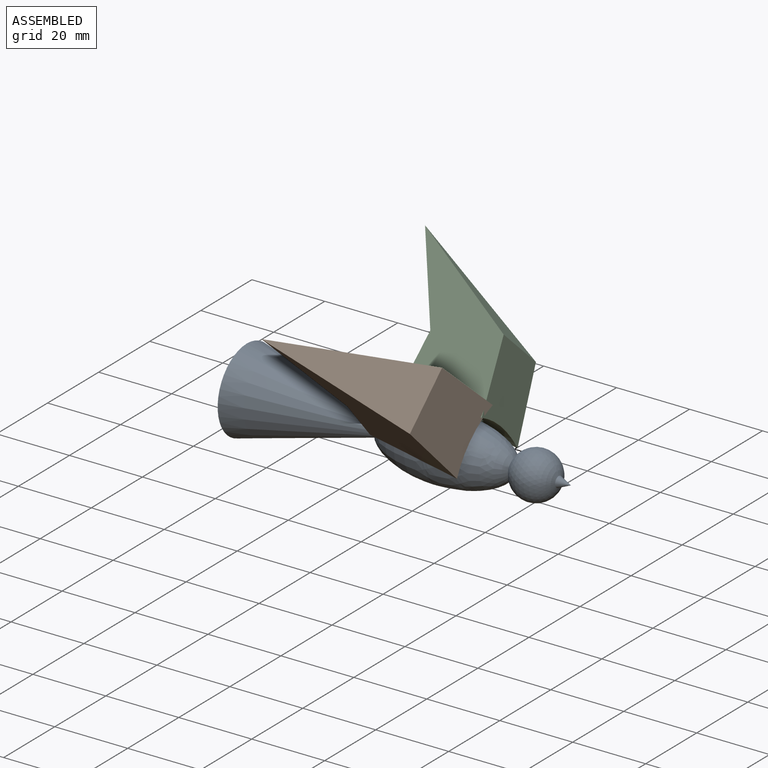
[diagram: assembled view]
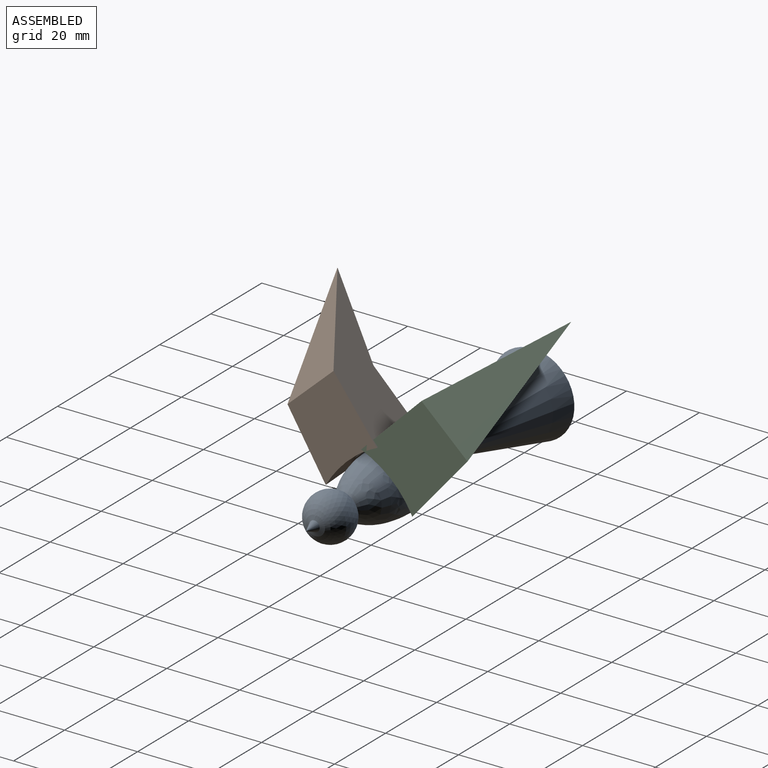
[diagram: assembled view, second angle]
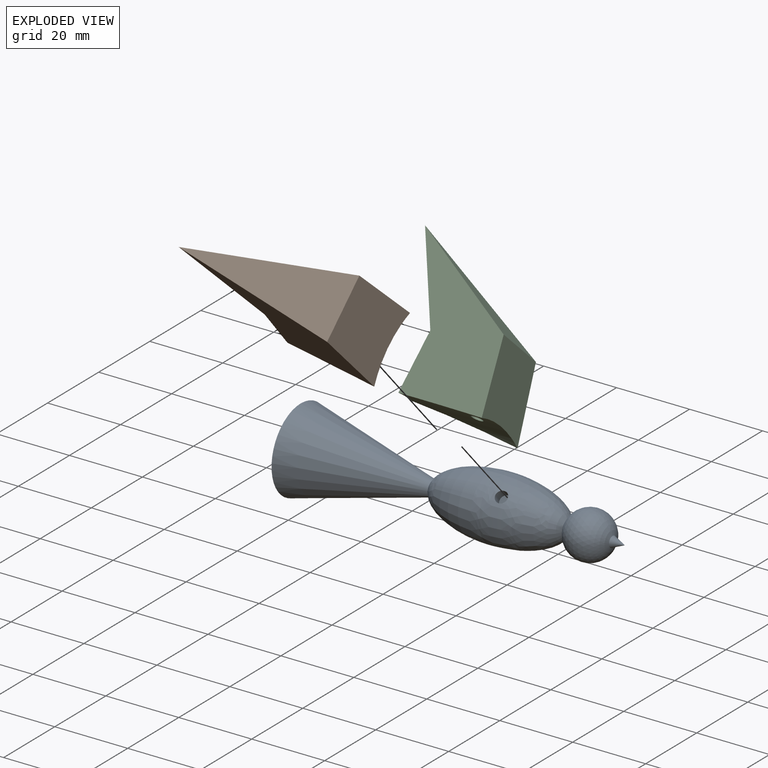
[diagram: exploded view]
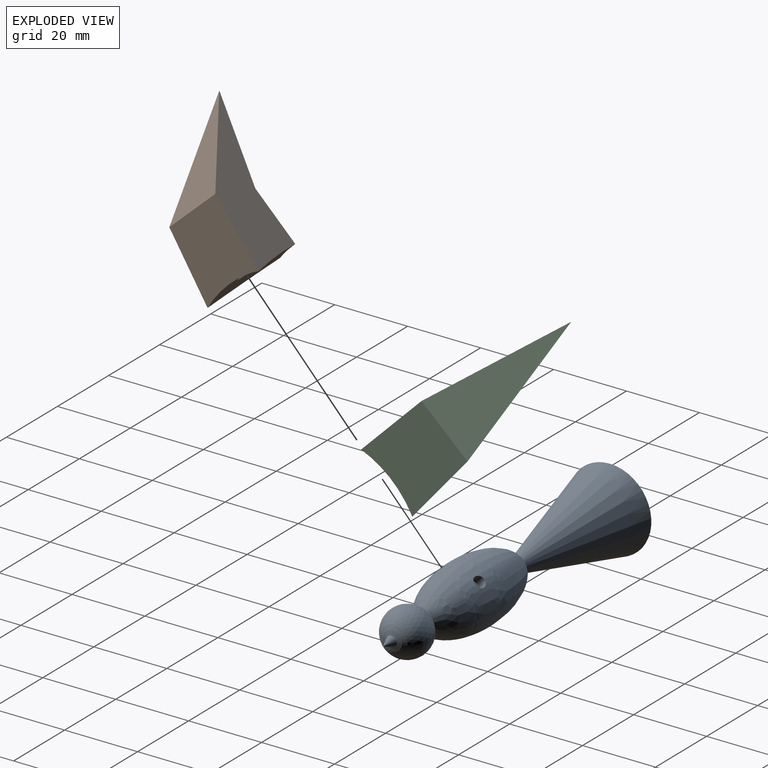
[diagram: exploded view, second angle]
ASSEMBLY  parts=3 mates=2
PART A: 9 faces, bbox 88.9x22.7x22.7 mm
  f0: revolved ~37.06x17.17mm, area 1692.2mm2, adj f2,f3,f5,f7
  f1: cone r=0mm half-angle=23.3deg, axis (-1,0,0), area 16.4mm2, adj f2
  f2: sphere r=6.36mm, area 486.9mm2, adj f0,f1
  f3: cone r=2.09mm half-angle=14.3deg, axis (-1,0,0), area 1584.3mm2, adj f0,f4
  f4: plane 22.74x22.74mm, normal (-1,0,0), area 406.1mm2, adj f3
  f5: cylinder r=1.59mm len=4.06mm, axis (0,-0.68,0.74), area 23.1mm2, adj f0,f6
  f6: plane 3.18x2.34mm, normal (0,-0.68,0.74), area 7.9mm2, adj f5
  f7: cylinder r=1.59mm len=4.06mm, axis (0,0.68,0.74), area 23.1mm2, adj f0,f8
  f8: plane 3.18x2.34mm, normal (0,0.68,0.74), area 7.9mm2, adj f7
PART B: 9 faces, bbox 37.5x40.2x19.1 mm
  f0: plane 15.84x6.89mm, normal (-1,0.09,0), area 101.7mm2, adj f3,f4,f5,f6
  f1: plane 19.97x19.05mm, normal (0.98,0.18,0), area 348.1mm2, adj f2,f4,f5,f6
  f2: plane 33.77x20.2mm, normal (0.51,0.86,0), area 337.5mm2, adj f1,f4,f5
  f3: plane 23.36x13.57mm, normal (-0.86,-0.5,0), area 93.1mm2, adj f0,f4,f5
  f4: plane 40.17x37.51mm, normal (-0.34,0,-0.94), area 693.9mm2, adj f0,f1,f2,f3,f6
  f5: plane 40.17x37.51mm, normal (-0.15,0,0.99), area 672.4mm2, adj f0,f1,f2,f3,f6
  f6: cylinder r=30.78mm len=25.32mm, axis (1,0,0), area 311mm2, adj f0,f1,f4,f5,f8
  f7: plane 3.18x3.18mm, normal (0,-1,0), area 7.9mm2, adj f8
  f8: cylinder r=1.59mm len=4.96mm, axis (0,-1,0), area 48.7mm2, adj f6,f7
PART C: same geometry as B
PLACE A t=(-19.97,-11.81,-1.54)mm
PLACE B rot(axis=(1,0,0),132.6deg) t=(3.93,-15.83,4.49)mm
PLACE C rot(axis=(1,0,0),47.4deg) t=(3.93,-6.13,2.97)mm
MATE fastened C.f8 <-> A.f7  axis (0,-0.68,-0.74) through (-4.09,-6.04,4.73)mm
MATE fastened B.f8 <-> A.f5  axis (0,0.68,-0.74) through (-4.09,-17.58,4.73)mm
